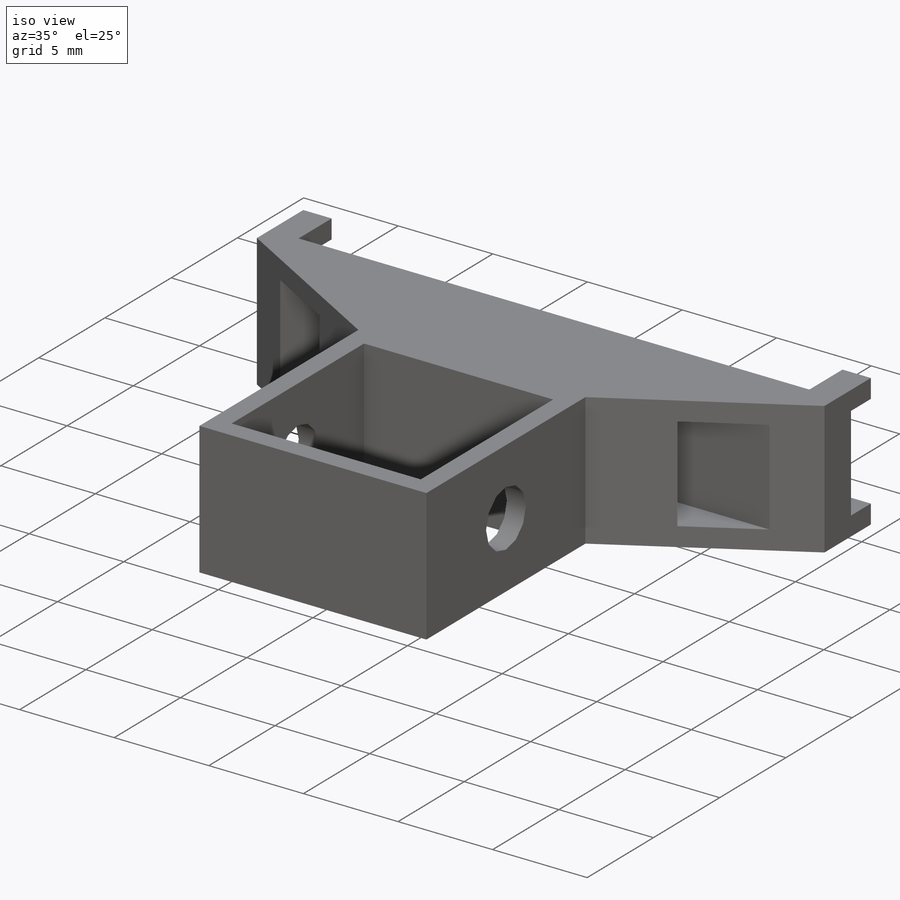
[diagram: iso view]
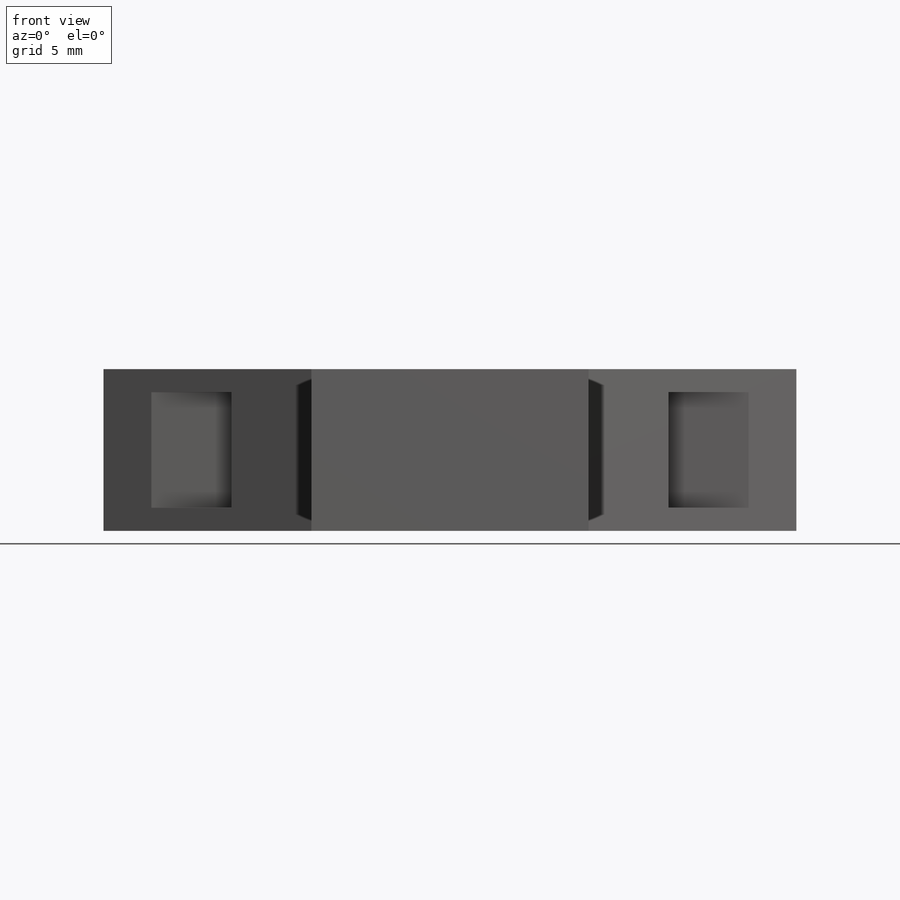
[diagram: front view]
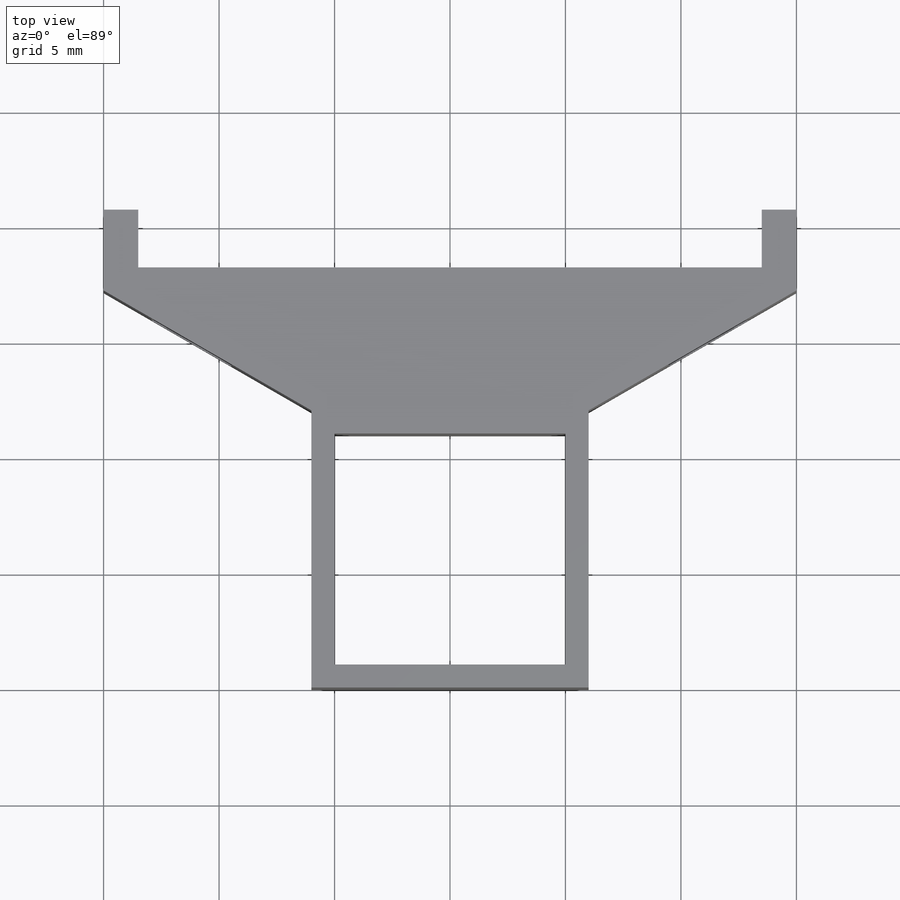
[diagram: top view]
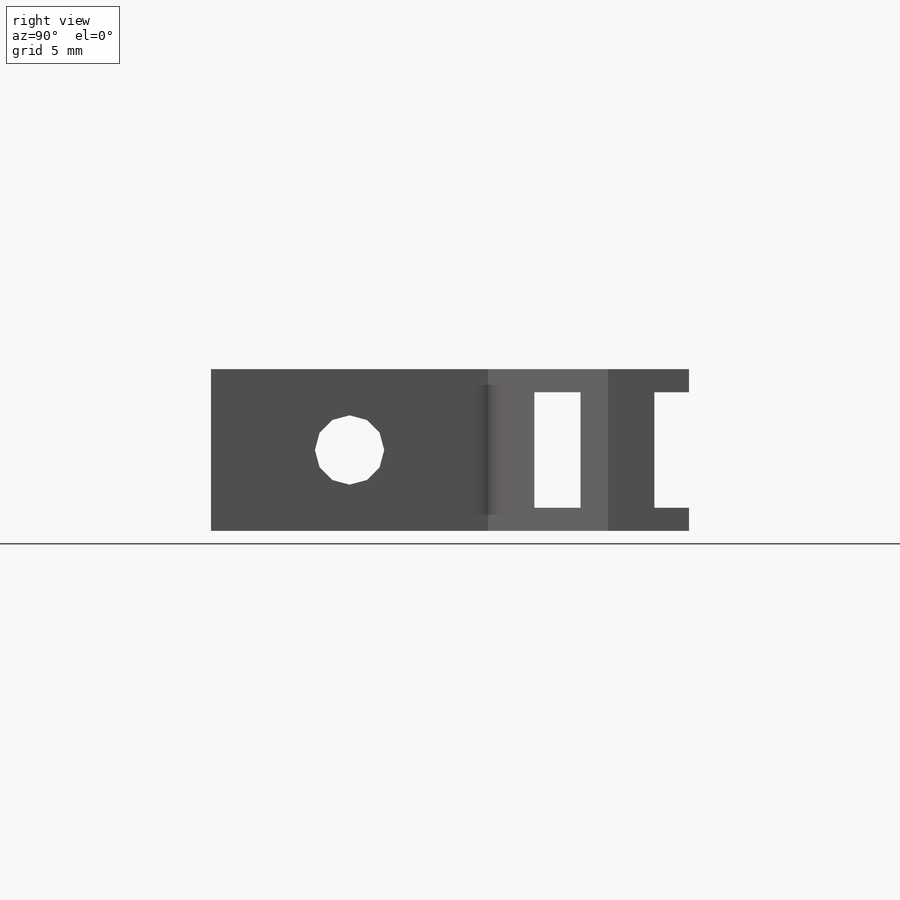
[diagram: right view]
SOLIDWORKS PART (.sldprt)
format: sldprt  version: not decoded by parser v0  size: 236,544 bytes
history: native  units: mm
features: sketch x6, cut_extrude x5, material x1, extrude x1 (+12 scaffold rows collapsed)
feature tree (25):
  scaffold x12  (default folders/planes/origin — collapsed)
  material  "Материал <не указан>"
  sketch  "Эскиз1"  dims[c1.D1=12.0mm c1.D2=30.0mm c1.D3=3.5mm c1.D4=~12.297461mm c2.D4=150.0deg c2.D5=12.0mm c3.D5=150.0deg c4.D5=~10.392305mm c5.D5=~13.897886deg]
  extrude  "Бобышка-Вытянуть1"  Depth=7mm
  sketch  "Эскиз2"  dims[c1.D1=10.0mm c1.D2=1.0mm c1.D3=1.0mm c1.D4=~9.359634mm c2.D4=90.0deg c3.D4=~9.359634mm]
  cut_extrude  "Вырез-Вытянуть1"  [1 undecoded]
  sketch  "Эскиз4"  dims[D1=3.0mm]
  cut_extrude  "Вырез-Вытянуть2"  [1 undecoded]
  sketch  "Эскиз5"  dims[D1=1.5mm D2=1.5mm D3=2.5mm]
  cut_extrude  "Вырез-Вытянуть3"  [1 undecoded]
  sketch  "Эскиз6"  dims[D1=5.0mm D2=2.0mm D3=1.0mm D4=2.0mm]
  cut_extrude  "Вырез-Вытянуть4"  [1 undecoded]
  sketch  "Эскиз7"  dims[D1=1.0mm D2=1.0mm D3=1.5mm]
  cut_extrude  "Вырез-Вытянуть5"  [1 undecoded]
decode coverage: 7 of 12 modeling features carry decoded parameters
note: ~ marks probable driven/reference dimensions
note: 5 parameter values undecoded
summary: no parameter record found for 5 features
note: suppression state not decoded; provenance and decode notes live in map.json
